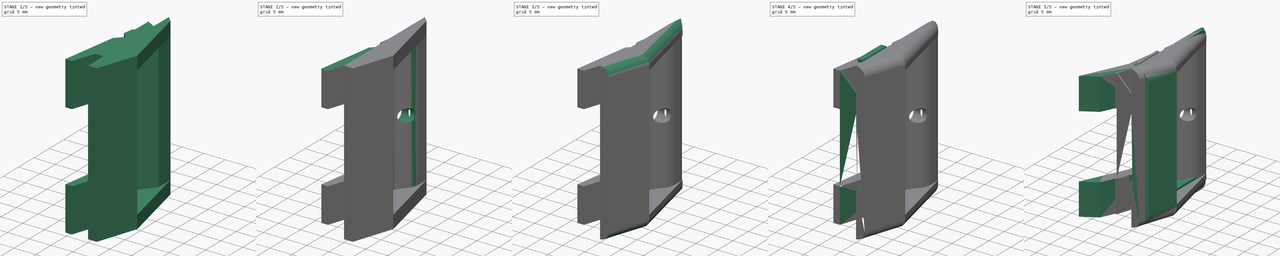
[diagram: build sequence overview — one tinted view per stage of 5, left to right]
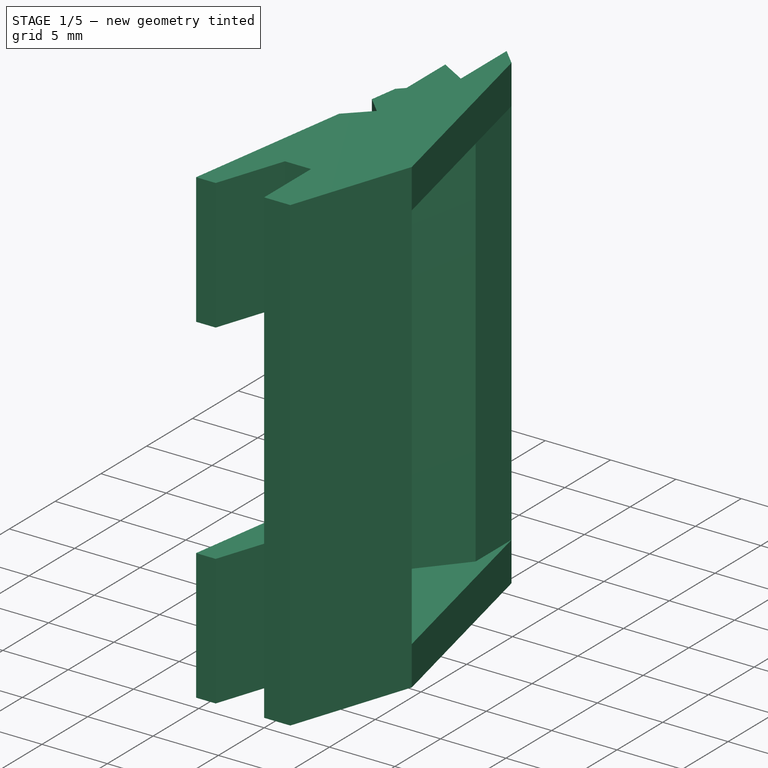
[diagram: stage 1 of 5 — iso view after this stage's code; geometry added in this stage tinted green]
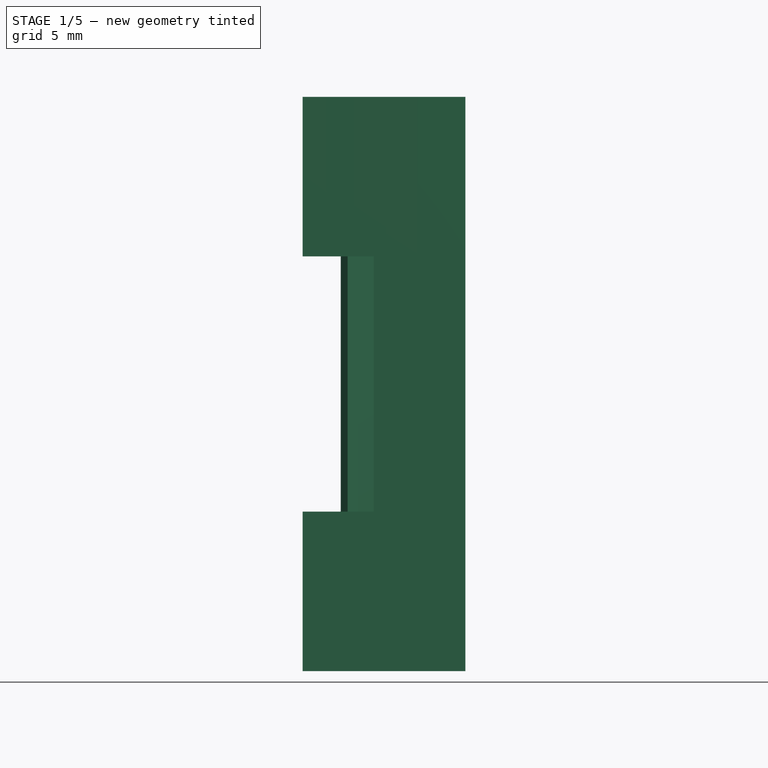
[diagram: stage 1 of 5 — front view after this stage's code; geometry added in this stage tinted green]
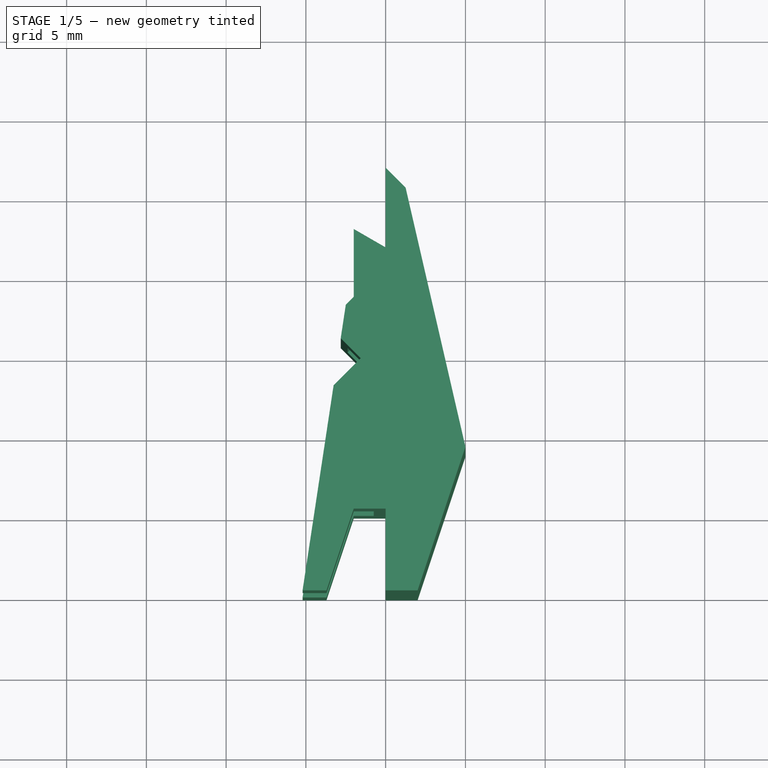
[diagram: stage 1 of 5 — top view after this stage's code; geometry added in this stage tinted green]
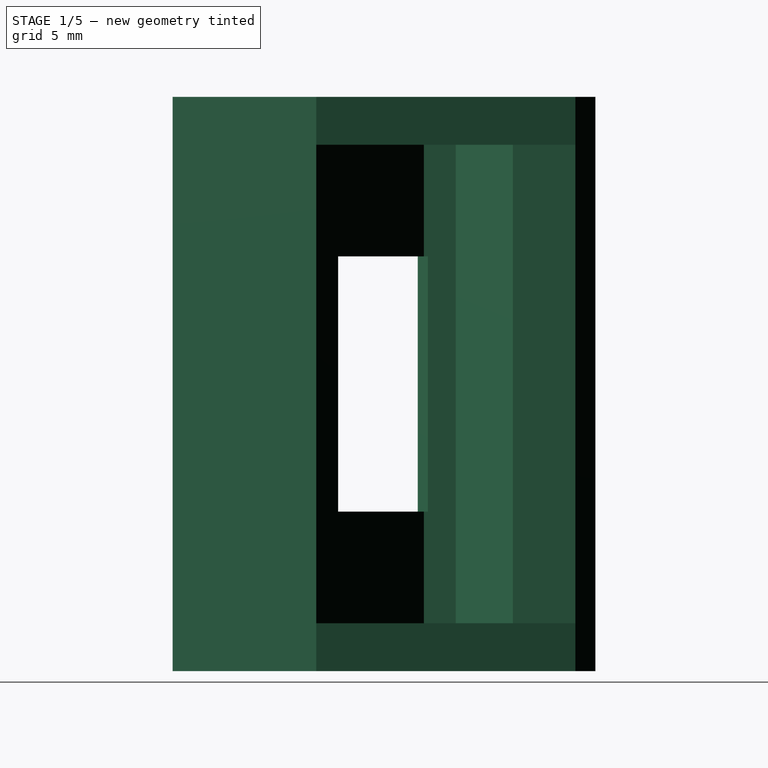
[diagram: stage 1 of 5 — right view after this stage's code; geometry added in this stage tinted green]
FCSTD DOCUMENT  (FreeCAD 0.18R4 (GitTag))
Label: USB_bezel_v1.1
License: All rights reserved
LicenseURL: http://en.wikipedia.org/wiki/All_rights_reserved
objects: Sketcher::SketchObject×11, PartDesign::Pocket×7, PartDesign::Pad×4, PartDesign::Fillet×4, PartDesign::Chamfer×3, PartDesign::Plane×2, Part::FeaturePython×1, PartDesign::Body×1
note: 44 computed .brp shape members not serialized (recipe doc carries the construction recipe); baked Part::Feature solids carry a one-line shape summary decoded from their .brp

FEATURE [Sketcher::SketchObject] Sketch
  MapMode = 5
  Support = -> [XY_Plane]
  sketch-geometry (13):
    g0: LineSegment StartX=0 StartY=26.5 StartZ=0 EndX=1.25 EndY=25.25 EndZ=0
    g1: LineSegment StartX=5 StartY=9 StartZ=0 EndX=2 EndY=0 EndZ=0
    g2: LineSegment StartX=2 StartY=0 StartZ=0 EndX=0 EndY=0 EndZ=0
    g3: LineSegment StartX=0 StartY=0 StartZ=0 EndX=0 EndY=5.125 EndZ=0
    g4: LineSegment StartX=0 StartY=5.125 StartZ=0 EndX=-2 EndY=5.125 EndZ=0
    g5: LineSegment StartX=-2 StartY=5.125 StartZ=0 EndX=-3.70833 EndY=0 EndZ=0
    g6: LineSegment StartX=-3.70833 StartY=0 StartZ=0 EndX=-5.20833 EndY=0 EndZ=0
    g7: LineSegment StartX=-5.20833 StartY=0 StartZ=0 EndX=-2.5 EndY=17.9047 EndZ=0
    g8: LineSegment StartX=-2.5 StartY=17.9047 StartZ=0 EndX=-2 EndY=18.4047 EndZ=0
    g9: LineSegment StartX=-2 StartY=18.4047 StartZ=0 EndX=-2 EndY=22.6547 EndZ=0
    g10: LineSegment StartX=-2 StartY=22.6547 StartZ=0 EndX=0 EndY=21.5 EndZ=0
    g11: LineSegment StartX=0 StartY=21.5 StartZ=0 EndX=0 EndY=26.5 EndZ=0
    g12: LineSegment StartX=1.25 StartY=25.25 StartZ=0 EndX=5 EndY=9 EndZ=0
  constraints (38):
    c: PointOnObject(g0,g-2)
    c: PointOnObject(g1,g-1)
    c: Coincident(g1,g2)
    c: Coincident(g2,g-1)
    c: Coincident(g2,g3)
    c: Vertical(g3)
    c: Coincident(g3,g4)
    c: Horizontal(g4)
    c: PointOnObject(g5,g-1)
    c: Coincident(g5,g6)
    c: PointOnObject(g6,g-1)
    c: Coincident(g6,g7)
    c: Coincident(g7,g8)
    c: Coincident(g8,g9)
    c: Vertical(g9)
    c: Coincident(g9,g10)
    c: PointOnObject(g10,g-2)
    c: Coincident(g10,g11)
    c: Coincident(g11,g0)
    c: DistanceY(g0) = 26.5
    c: Angle(g0) = -0.785398
    c: DistanceX(g0,g0) = 1.25
    c: DistanceX(g2,g2) = 2
    c: DistanceX(g1,g1) = 3
    c: DistanceY(g1,g1) = 9
    c: DistanceY(g3,g3) = 5.125
    c: DistanceX(g4,g4) = 2
    c: Coincident(g4,g5)
    c: Parallel(g5,g1)
    c: Angle(g10) = -0.523599
    c: DistanceY(g11,g11) = 5
    c: DistanceX(g10,g10) = 2
    c: DistanceY(g9,g9) = 4.25
    c: Angle(g8) = 0.785398
    c: DistanceY(g8,g8) = 0.5
    c: DistanceX(g6,g6) = 1.5
    c: Coincident(g0,g12)
    c: Coincident(g12,g1)
FEATURE [PartDesign::Pad] Pad
  Length = 36
  Length2 = 100
  Profile = -> Sketch
  Refine = true
  Type = 0
FEATURE [PartDesign::Plane] DatumPlane
  AttachmentOffset = pos=(0,0,-10) rot=(0,0,1;0rad)
  Length = 25.4037
  MapMode = 5
  Placement = pos=(0,0,10) rot=(1,0,0;3.14159rad)
  ResizeMode = 0
  Support = -> [Pad]
  Width = 41.9037
FEATURE [Sketcher::SketchObject] Sketch003
  ExternalGeometry = -> [Pad]
  MapMode = 5
  Placement = pos=(0,0,10) rot=(1,0,0;3.14159rad)
  Support = -> [DatumPlane]
  sketch-geometry (6):
    g0: LineSegment StartX=4.48438 StartY=-11.2344 StartZ=0 EndX=-0.75 EndY=-6 EndZ=0
    g1: LineSegment StartX=-0.75 StartY=-6 StartZ=0 EndX=-0.75 EndY=0 EndZ=0
    g2: LineSegment StartX=-0.75 StartY=0 StartZ=0 EndX=-7.25 EndY=0 EndZ=0
    g3: LineSegment StartX=-7.25 StartY=0 StartZ=0 EndX=-7.25 EndY=-10.5 EndZ=0
    g4: LineSegment StartX=-7.25 StartY=-10.5 StartZ=0 EndX=2.42188 EndY=-20.1719 EndZ=0
    g5: LineSegment StartX=4.48438 StartY=-11.2344 StartZ=0 EndX=2.42188 EndY=-20.1719 EndZ=0
  constraints (18):
    c: Coincident(g0,g1)
    c: PointOnObject(g1,g-1)
    c: Vertical(g1)
    c: Coincident(g1,g2)
    c: PointOnObject(g2,g-1)
    c: Coincident(g2,g3)
    c: Vertical(g3)
    c: Coincident(g3,g4)
    c: DistanceX(g1) = -0.75
    c: Angle(g0) = 2.35619
    c: Parallel(g4,g0)
    c: DistanceY(g1,g1) = 6
    c: Coincident(g5,g0)
    c: Coincident(g5,g4)
    c: DistanceX(g2,g2) = 6.5
    c: DistanceY(g3,g3) = 10.5
    c: PointOnObject(g0,g-3)
    c: PointOnObject(g4,g-3)
FEATURE [PartDesign::Pocket] Pocket
  BaseFeature = -> Pad
  Length = 16
  Length2 = 100
  Profile = -> Sketch003
  Refine = true
  Type = 0
FEATURE [PartDesign::Plane] DatumPlane001
  AttachmentOffset = pos=(0,0,-3) rot=(0,0,1;0rad)
  Length = 25.4037
  MapMode = 5
  Placement = pos=(0,0,3) rot=(1,0,0;3.14159rad)
  ResizeMode = 0
  Support = -> [Pocket]
  Width = 41.9037
FEATURE [Sketcher::SketchObject] Sketch004
  ExternalGeometry = -> [Pocket]
  MapMode = 5
  Placement = pos=(0,0,3) rot=(1,0,0;3.14159rad)
  Support = -> [DatumPlane001]
  sketch-geometry (5):
    g0: LineSegment StartX=5 StartY=-9 StartZ=0 EndX=-1.75 EndY=-15.75 EndZ=0
    g1: LineSegment StartX=5 StartY=-9 StartZ=0 EndX=1.25 EndY=-25.25 EndZ=0
    g2: LineSegment StartX=1.25 StartY=-25.25 StartZ=0 EndX=1.25 EndY=-21.3253 EndZ=0
    g3: LineSegment StartX=1.25 StartY=-21.3253 StartZ=0 EndX=-1.75 EndY=-17.75 EndZ=0
    g4: LineSegment StartX=-1.75 StartY=-17.75 StartZ=0 EndX=-1.75 EndY=-15.75 EndZ=0
  constraints (13):
    c: Coincident(g0,g1)
    c: Coincident(g1,g2)
    c: Vertical(g2)
    c: Coincident(g2,g3)
    c: Coincident(g3,g4)
    c: Coincident(g4,g0)
    c: Vertical(g4)
    c: Angle(g0) = -2.35619
    c: Coincident(g0,g-3)
    c: DistanceX(g0,g0) = 6.75
    c: DistanceY(g4,g4) = 2
    c: Coincident(g1,g-4)
    c: Angle(g3) = 2.26893
FEATURE [PartDesign::Pocket] Pocket001
  BaseFeature = -> Pocket
  Length = 30
  Length2 = 100
  Profile = -> Sketch004
  Refine = true
  Type = 0
FEATURE [Sketcher::SketchObject] Sketch005
  ExternalGeometry = -> [Pocket001]
  MapMode = 5
  Placement = pos=(0,0,26) rot=(1,0,0;3.14159rad)
  Support = -> [Pocket001]
  sketch-geometry (3):
    g0: LineSegment StartX=-2.81782 StartY=-15.8036 StartZ=0 EndX=-1.56782 EndY=-14.5536 EndZ=0
    g1: LineSegment StartX=-1.56782 StartY=-14.5536 StartZ=0 EndX=-3.26338 EndY=-12.858 EndZ=0
    g2: LineSegment StartX=-3.26338 StartY=-12.858 StartZ=0 EndX=-2.81782 EndY=-15.8036 EndZ=0
  constraints (9):
    c: Coincident(g0,g1)
    c: Coincident(g1,g2)
    c: Coincident(g2,g0)
    c: Angle(g0) = 0.785398
    c: PointOnObject(g0,g-3)
    c: DistanceX(g0,g0) = 1.25
    c: Perpendicular(g0,g1)
    c: PointOnObject(g1,g-3)
    c: Distance(g0,g-3) = 2.125
FEATURE [PartDesign::Pocket] Pocket002
  BaseFeature = -> Pocket001
  Length = 5
  Length2 = 100
  Midplane = true
  Profile = -> Sketch005
  Refine = true
  Type = 1
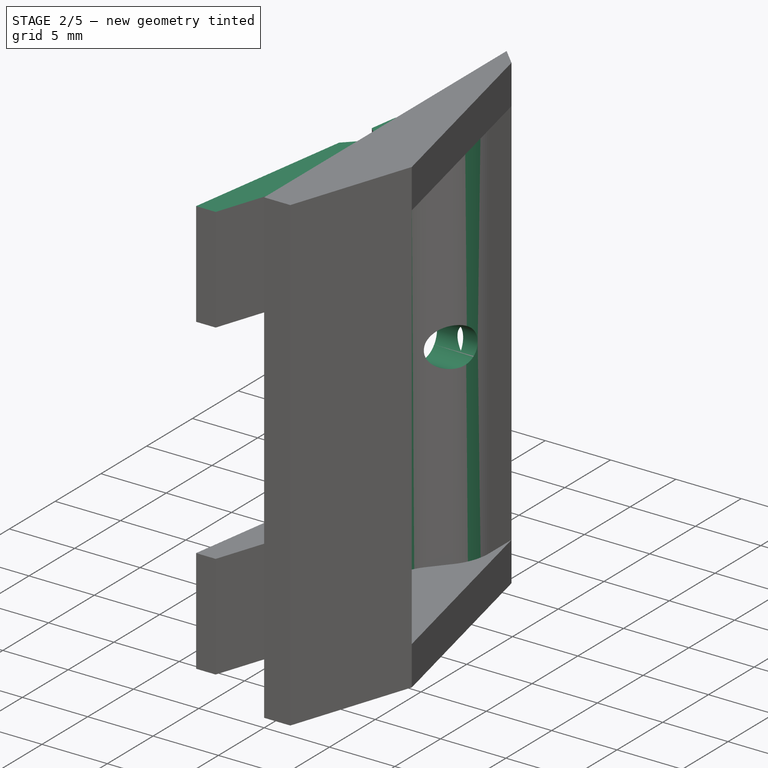
[diagram: stage 2 of 5 — iso view after this stage's code; geometry added in this stage tinted green]
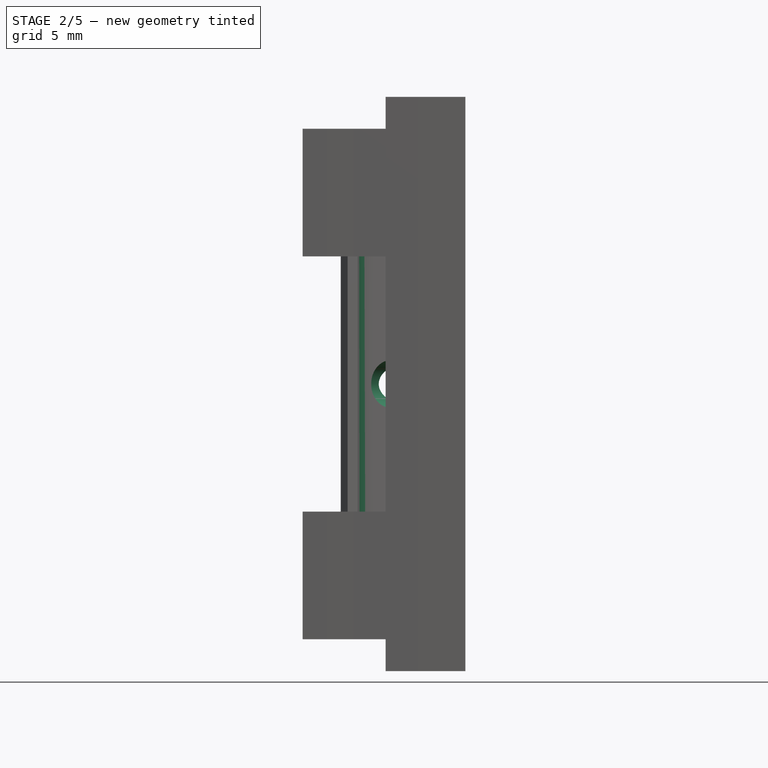
[diagram: stage 2 of 5 — front view after this stage's code; geometry added in this stage tinted green]
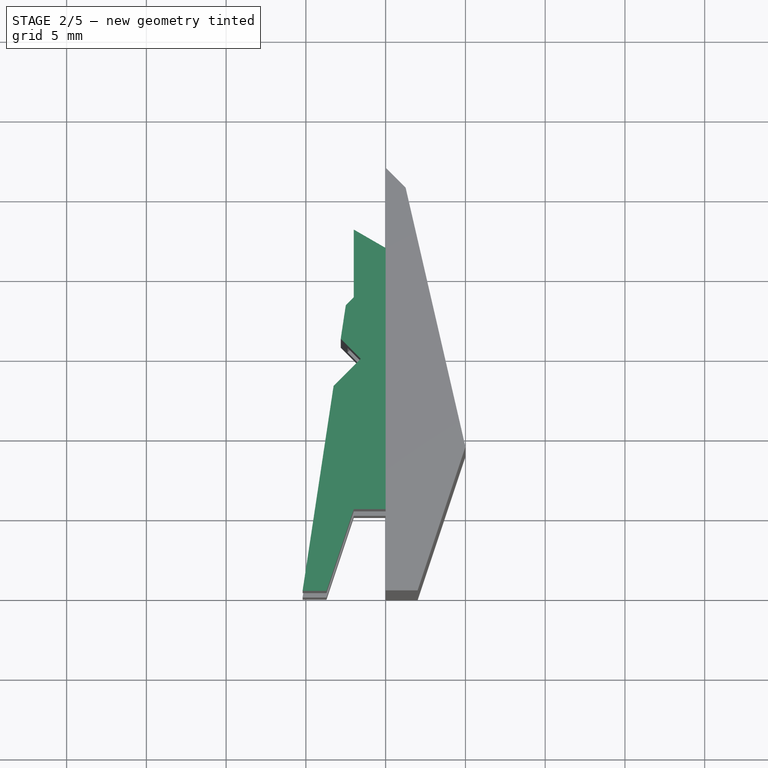
[diagram: stage 2 of 5 — top view after this stage's code; geometry added in this stage tinted green]
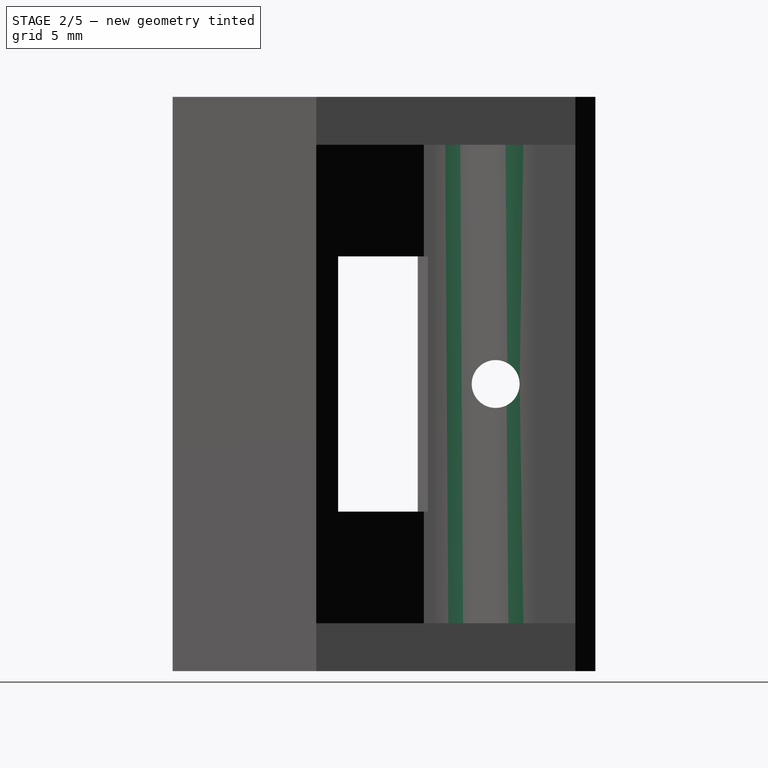
[diagram: stage 2 of 5 — right view after this stage's code; geometry added in this stage tinted green]
FEATURE [Sketcher::SketchObject] Sketch006
  ExternalGeometry = -> [Pocket002]
  MapMode = 5
  Placement = pos=(0,5.125,0) rot=(1,0,0;1.5708rad)
  Support = -> [Pocket002]
  sketch-geometry (4):
    g0: LineSegment StartX=-0.75 StartY=26 StartZ=0 EndX=0 EndY=26 EndZ=0
    g1: LineSegment StartX=0 StartY=26 StartZ=0 EndX=0 EndY=10 EndZ=0
    g2: LineSegment StartX=0 StartY=10 StartZ=0 EndX=-0.75 EndY=10 EndZ=0
    g3: LineSegment StartX=-0.75 StartY=10 StartZ=0 EndX=-0.75 EndY=26 EndZ=0
  constraints (10):
    c: Coincident(g0,g1)
    c: Coincident(g1,g2)
    c: Coincident(g2,g3)
    c: Coincident(g3,g0)
    c: Horizontal(g0)
    c: Horizontal(g2)
    c: Vertical(g1)
    c: Coincident(g0,g-3)
    c: PointOnObject(g1,g-2)
    c: Coincident(g2,g-3)
FEATURE [PartDesign::Pocket] Pocket003
  BaseFeature = -> Pocket002
  Length = 5
  Length2 = 100
  Profile = -> Sketch006
  Refine = true
  Type = 0
FEATURE [Sketcher::SketchObject] Sketch007
  MapMode = 5
  Placement = pos=(0,0,0) rot=(1,0,0;1.5708rad)
  Support = -> [Pocket003]
  sketch-geometry (8):
    g0: LineSegment StartX=0 StartY=0 StartZ=0 EndX=-6 EndY=0 EndZ=0
    g1: LineSegment StartX=-6 StartY=0 StartZ=0 EndX=-6 EndY=2 EndZ=0
    g2: LineSegment StartX=-6 StartY=2 StartZ=0 EndX=0 EndY=2 EndZ=0
    g3: LineSegment StartX=0 StartY=2 StartZ=0 EndX=0 EndY=0 EndZ=0
    g4: LineSegment StartX=0 StartY=36 StartZ=0 EndX=-6 EndY=36 EndZ=0
    g5: LineSegment StartX=-6 StartY=36 StartZ=0 EndX=-6 EndY=34 EndZ=0
    g6: LineSegment StartX=-6 StartY=34 StartZ=0 EndX=0 EndY=34 EndZ=0
    g7: LineSegment StartX=0 StartY=34 StartZ=0 EndX=0 EndY=36 EndZ=0
  constraints (23):
    c: Coincident(g0,g1)
    c: Coincident(g1,g2)
    c: Coincident(g2,g3)
    c: Coincident(g3,g0)
    c: Horizontal(g0)
    c: Horizontal(g2)
    c: Vertical(g1)
    c: Vertical(g3)
    c: Coincident(g0,g-1)
    c: Coincident(g4,g5)
    c: Coincident(g5,g6)
    c: Coincident(g6,g7)
    c: Coincident(g7,g4)
    c: Horizontal(g4)
    c: Horizontal(g6)
    c: Vertical(g5)
    c: Vertical(g7)
    c: PointOnObject(g4,g-2)
    c: DistanceY(g4) = 36
    c: Equal(g0,g4)
    c: Equal(g7,g3)
    c: DistanceX(g4,g4) = 6
    c: DistanceY(g7,g7) = 2
FEATURE [PartDesign::Pocket] Pocket004
  BaseFeature = -> Pocket003
  Length = 5
  Length2 = 100
  Profile = -> Sketch007
  Refine = true
  Type = 1
FEATURE [PartDesign::Fillet] Fillet
  Base = -> Pocket004 [Edge27,Edge10]
  BaseFeature = -> Pocket004
  Radius = 4
FEATURE [Sketcher::SketchObject] Sketch008
  MapMode = 5
  Placement = pos=(1.25,0,0) rot=(0.57735,0.57735,0.57735;2.0944rad)
  Support = -> [Fillet]
  sketch-geometry (1):
    g0: Circle CenterX=20.25 CenterY=18 CenterZ=0 NormalX=0 NormalY=0 NormalZ=1 AngleXU=0 Radius=1.5
  constraints (3):
    c: DistanceY(g-1,g0) = 18
    c: DistanceX(g0) = 20.25
    c: Radius(g0) = 1.5
FEATURE [PartDesign::Pocket] Pocket005
  BaseFeature = -> Fillet
  Length = 5
  Length2 = 100
  Profile = -> Sketch008
  Refine = true
  Type = 0
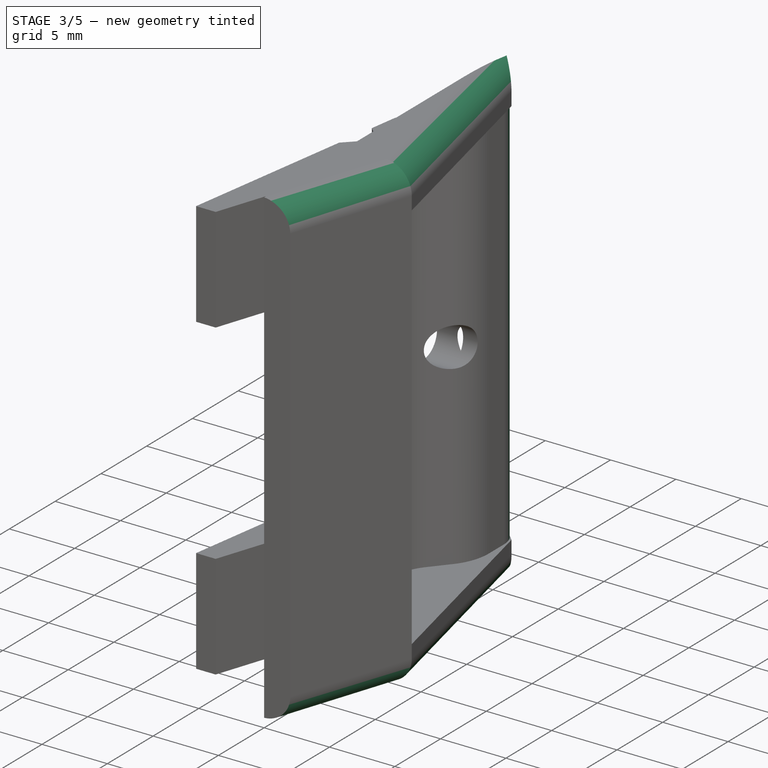
[diagram: stage 3 of 5 — iso view after this stage's code; geometry added in this stage tinted green]
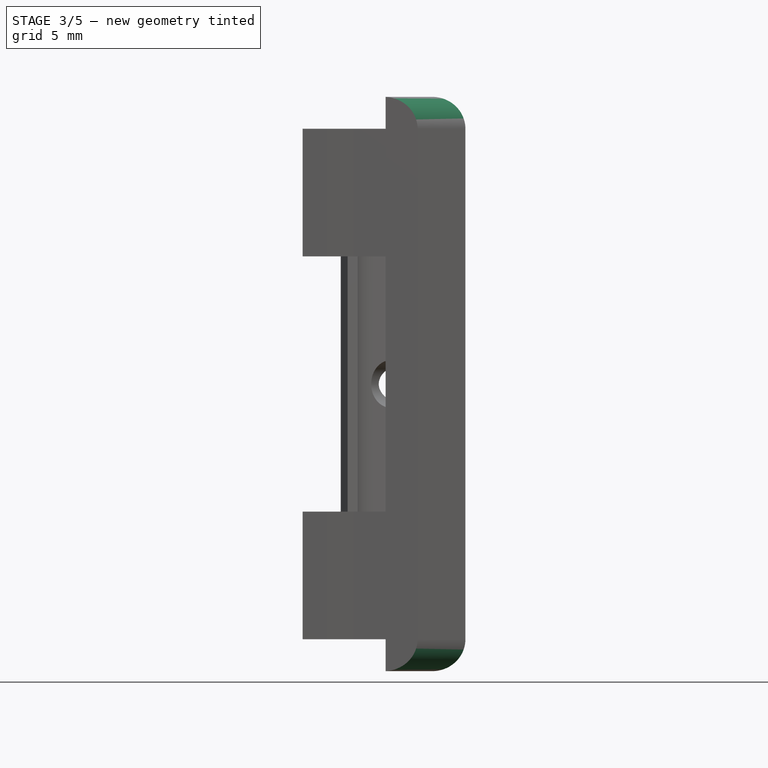
[diagram: stage 3 of 5 — front view after this stage's code; geometry added in this stage tinted green]
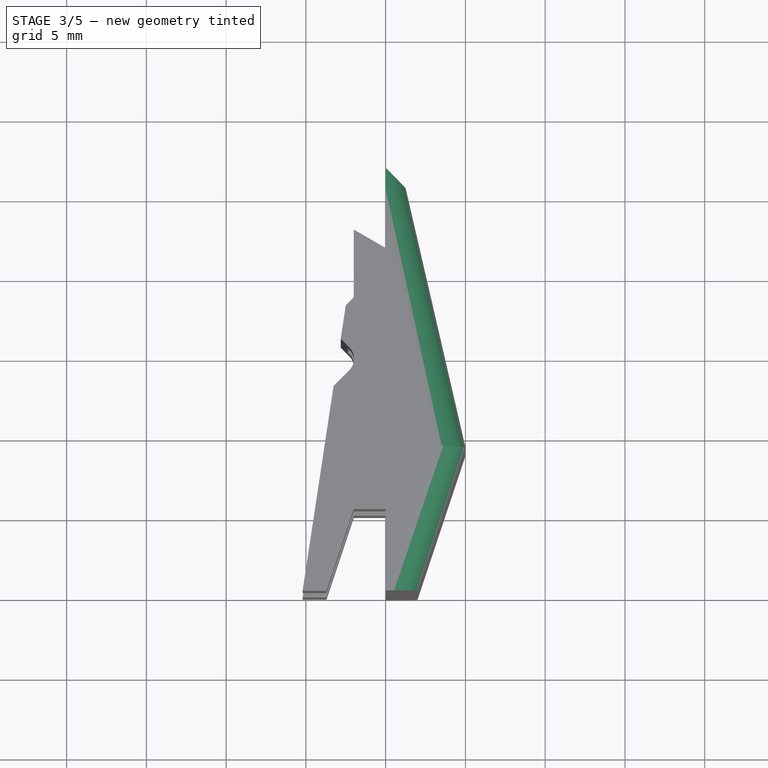
[diagram: stage 3 of 5 — top view after this stage's code; geometry added in this stage tinted green]
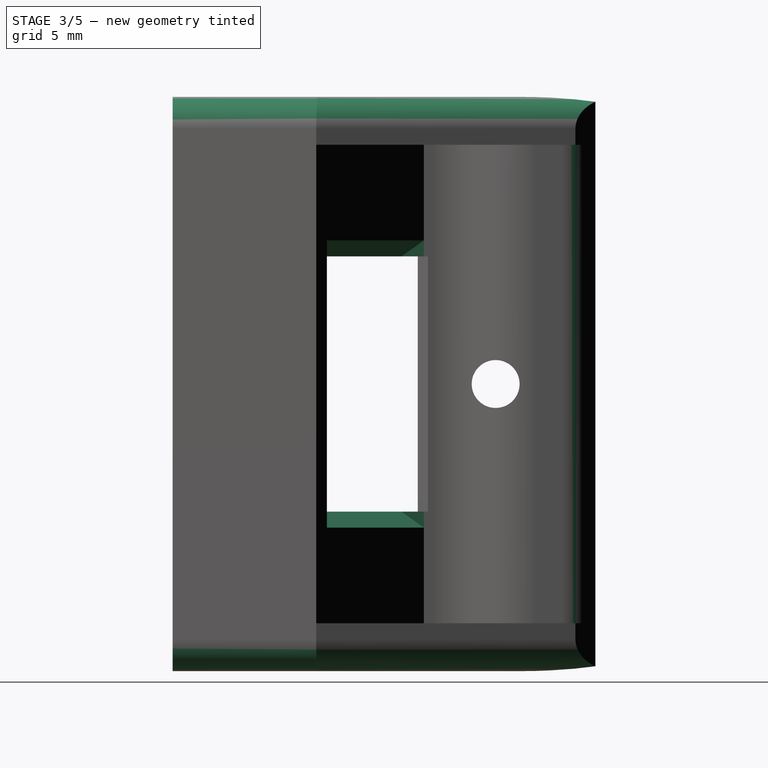
[diagram: stage 3 of 5 — right view after this stage's code; geometry added in this stage tinted green]
FEATURE [PartDesign::Fillet] Fillet001
  Base = -> Pocket005 [Edge65,Edge67,Edge63,Edge40,Edge3]
  BaseFeature = -> Pocket005
  Radius = 2
FEATURE [PartDesign::Fillet] Fillet002
  Base = -> Fillet001 [Edge125,Edge126]
  BaseFeature = -> Fillet001
  Radius = 1
FEATURE [PartDesign::Chamfer] Chamfer
  Base = -> Fillet002 [Edge7,Edge36,Edge35]
  BaseFeature = -> Fillet002
  Size = 1
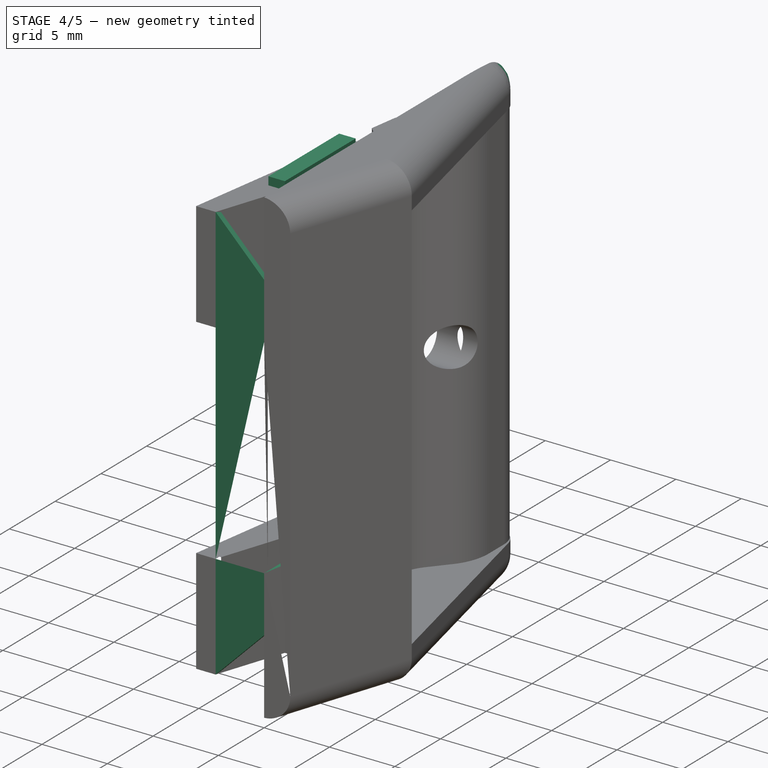
[diagram: stage 4 of 5 — iso view after this stage's code; geometry added in this stage tinted green]
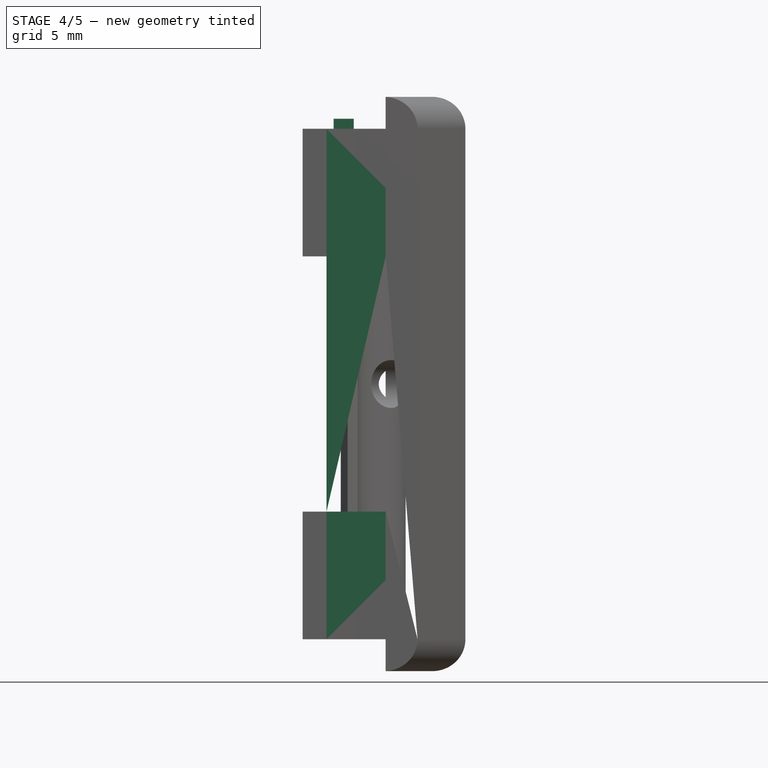
[diagram: stage 4 of 5 — front view after this stage's code; geometry added in this stage tinted green]
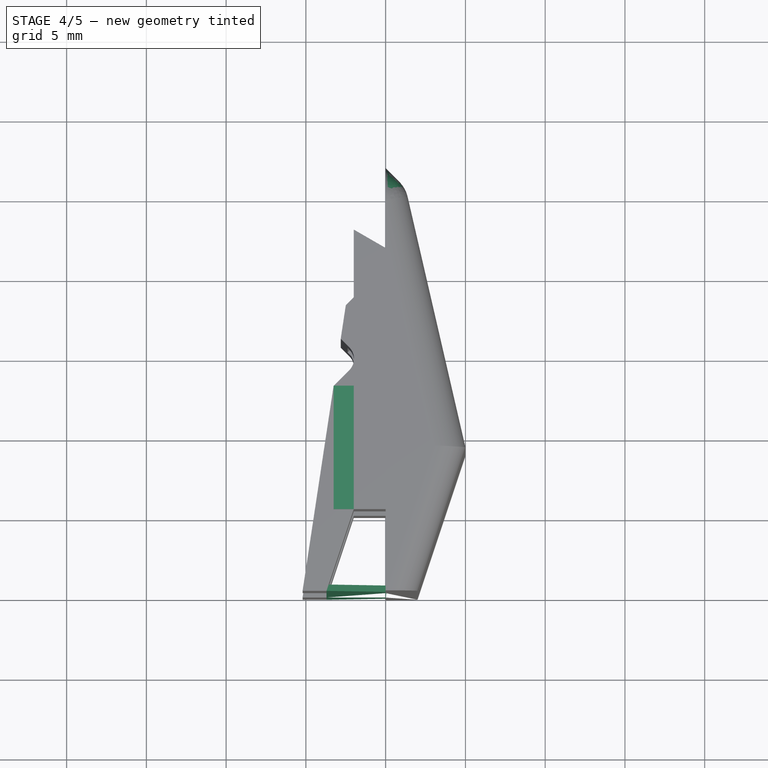
[diagram: stage 4 of 5 — top view after this stage's code; geometry added in this stage tinted green]
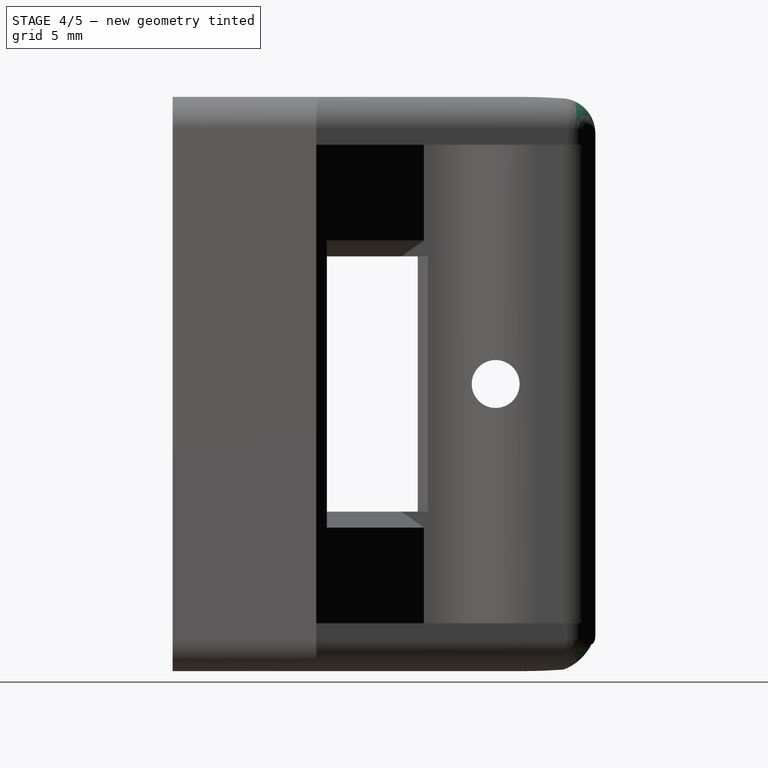
[diagram: stage 4 of 5 — right view after this stage's code; geometry added in this stage tinted green]
FEATURE [PartDesign::Fillet] Fillet003
  Base = -> Chamfer [Edge88,Edge89]
  BaseFeature = -> Chamfer
  Radius = 2
FEATURE [Sketcher::SketchObject] Sketch009
  ExternalGeometry = -> [Fillet003]
  MapMode = 5
  Placement = pos=(0,0,0) rot=(1,0,0;1.5708rad)
  Support = -> [Fillet003]
  sketch-geometry (4):
    g0: LineSegment StartX=-3.70833 StartY=34 StartZ=0 EndX=4e-16 EndY=30.2917 EndZ=0
    g1: LineSegment StartX=0 StartY=30.2917 StartZ=0 EndX=0 EndY=5.70833 EndZ=0
    g2: LineSegment StartX=0 StartY=5.70833 StartZ=0 EndX=-3.70833 EndY=2 EndZ=0
    g3: LineSegment StartX=-3.70833 StartY=2 StartZ=0 EndX=-3.70833 EndY=34 EndZ=0
  constraints (10):
    c: Coincident(g-3,g0)
    c: Coincident(g0,g1)
    c: Vertical(g1)
    c: Coincident(g1,g2)
    c: Coincident(g2,g-4)
    c: Coincident(g2,g3)
    c: Coincident(g3,g0)
    c: PointOnObject(g0,g-2)
    c: Angle(g2) = -2.35619
    c: Perpendicular(g2,g0)
FEATURE [PartDesign::Pad] Pad001
  BaseFeature = -> Fillet003
  Length = 0.4
  Length2 = 100
  Profile = -> Sketch009
  Refine = true
  Reversed = true
  Type = 0
FEATURE [Sketcher::SketchObject] Sketch010
  ExternalGeometry = -> [Pad001]
  MapMode = 5
  Placement = pos=(1.011e-13,-9.2e-14,10) rot=(0,0,1;0rad)
  Support = -> [Pad001]
  sketch-geometry (3):
    g0: LineSegment StartX=1.5 StartY=8.25 StartZ=0 EndX=-2e-16 EndY=0 EndZ=0
    g1: LineSegment StartX=-2e-16 StartY=0 StartZ=0 EndX=-1.8e-15 EndY=6.75 EndZ=0
    g2: LineSegment StartX=-1.8e-15 StartY=6.75 StartZ=0 EndX=1.5 EndY=8.25 EndZ=0
  constraints (7):
    c: PointOnObject(g0,g-4)
    c: Coincident(g0,g-1)
    c: Coincident(g0,g1)
    c: Coincident(g1,g-4)
    c: Coincident(g1,g2)
    c: Coincident(g2,g0)
    c: DistanceX(g2,g2) = 1.5
FEATURE [PartDesign::Pocket] Pocket006
  BaseFeature = -> Pad001
  Length = 16
  Length2 = 100
  Profile = -> Sketch010
  Refine = true
  Reversed = true
  Type = 0
FEATURE [Sketcher::SketchObject] Sketch011
  ExternalGeometry = -> [Pocket006]
  MapMode = 5
  Placement = pos=(0,7.5e-15,34) rot=(0,0,1;0rad)
  Support = -> [Pocket006]
  sketch-geometry (4):
    g0: LineSegment StartX=-2 StartY=5.125 StartZ=0 EndX=-2 EndY=12.858 EndZ=0
    g1: LineSegment StartX=-2 StartY=12.858 StartZ=0 EndX=-3.26338 EndY=12.858 EndZ=0
    g2: LineSegment StartX=-3.26338 StartY=12.858 StartZ=0 EndX=-3.26338 EndY=5.125 EndZ=0
    g3: LineSegment StartX=-3.26338 StartY=5.125 StartZ=0 EndX=-2 EndY=5.125 EndZ=0
  constraints (10):
    c: Coincident(g-3,g0)
    c: Vertical(g0)
    c: Coincident(g0,g1)
    c: Coincident(g1,g-4)
    c: Horizontal(g1)
    c: Coincident(g1,g2)
    c: Vertical(g2)
    c: Coincident(g2,g3)
    c: Coincident(g3,g0)
    c: Horizontal(g3)
FEATURE [PartDesign::Pad] Pad002
  BaseFeature = -> Pocket006
  Length = 0.625
  Length2 = 100
  Profile = -> Sketch011
  Refine = true
  Type = 0
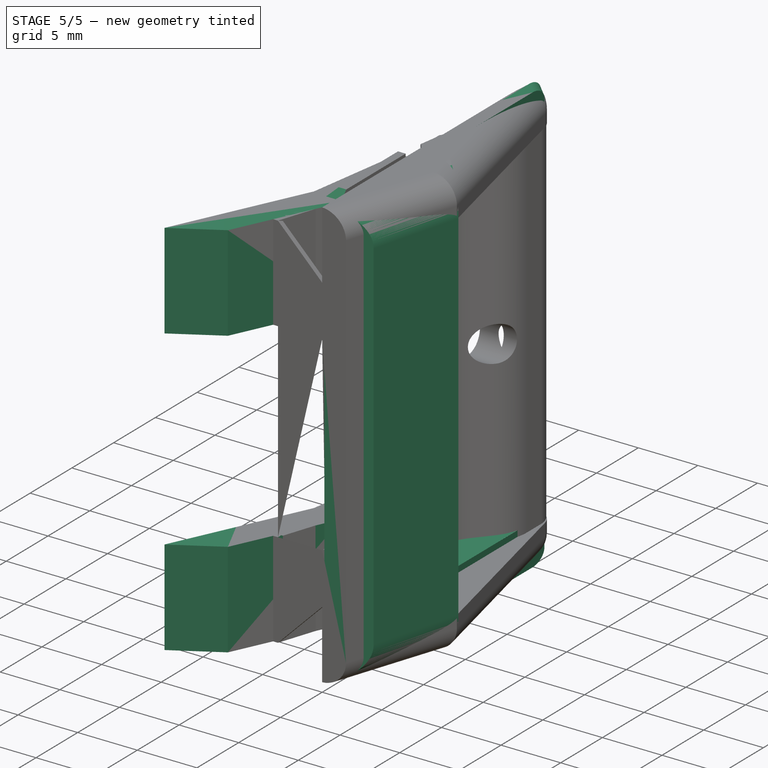
[diagram: stage 5 of 5 — iso view after this stage's code; geometry added in this stage tinted green]
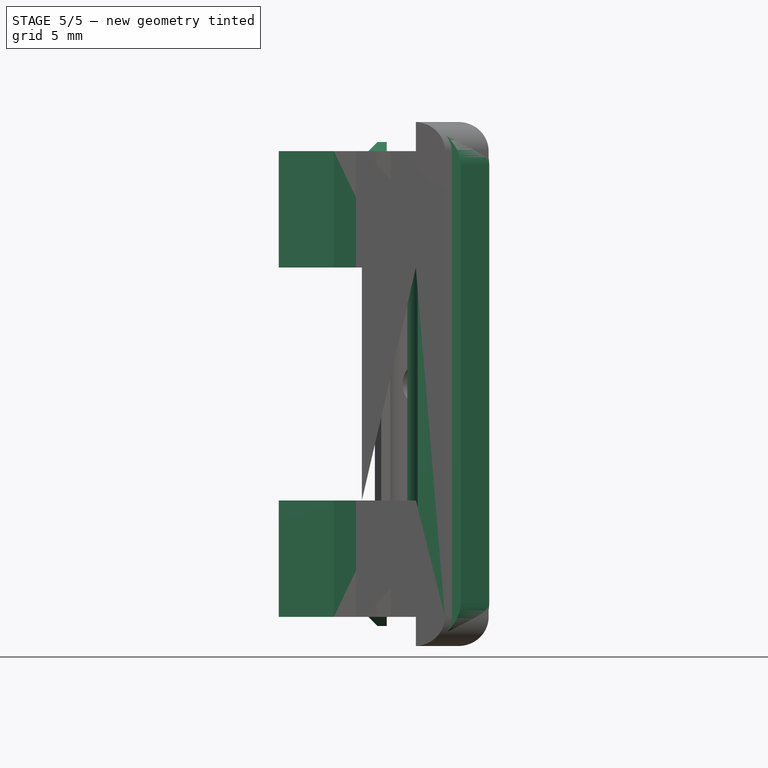
[diagram: stage 5 of 5 — front view after this stage's code; geometry added in this stage tinted green]
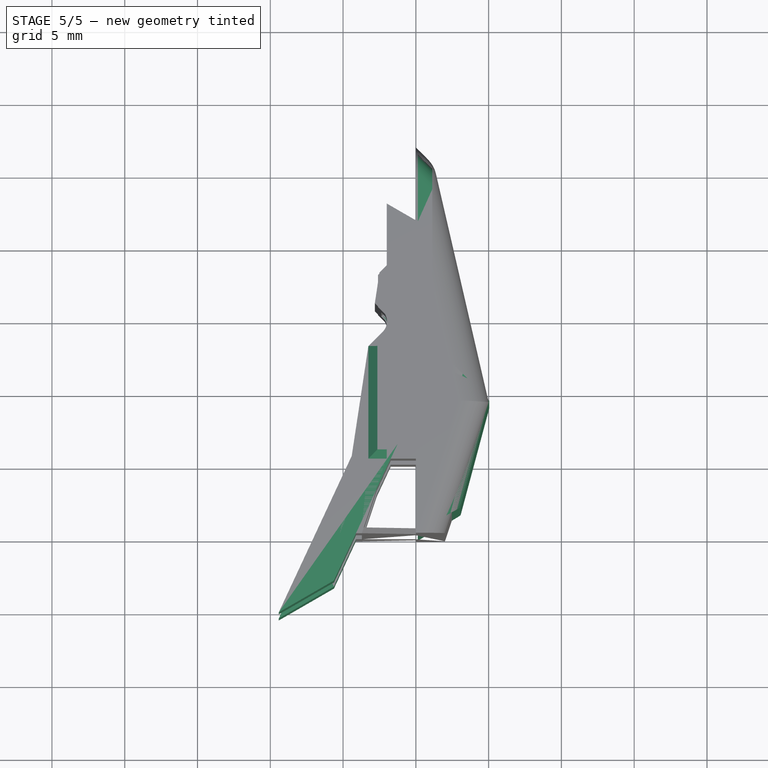
[diagram: stage 5 of 5 — top view after this stage's code; geometry added in this stage tinted green]
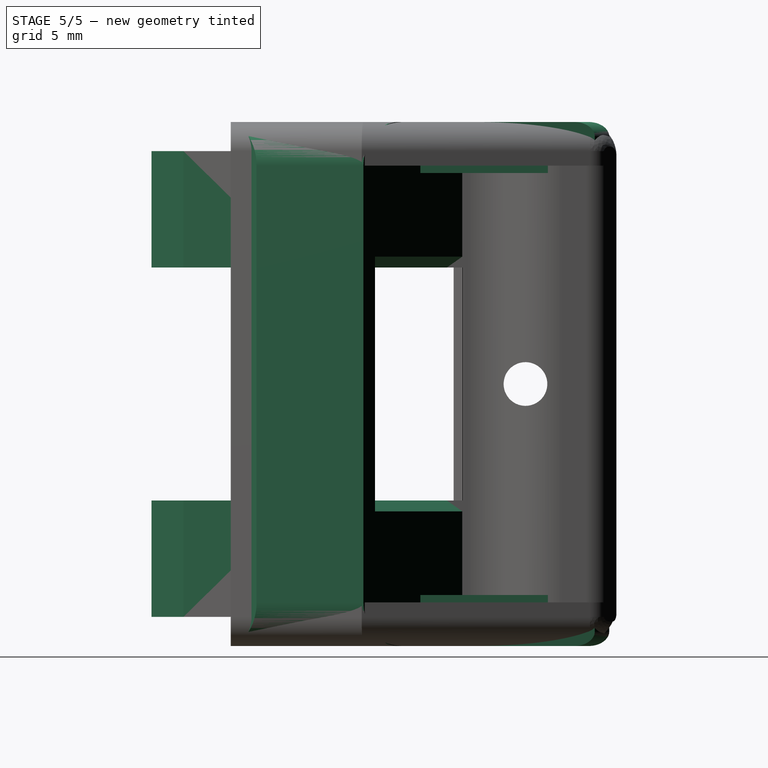
[diagram: stage 5 of 5 — right view after this stage's code; geometry added in this stage tinted green]
FEATURE [Part::FeaturePython] b_USB_bezel_v1_001_  label="USB_bezel_v1_001"  # a2plus imported part (geometry in sourceFile) (typed FeaturePython)
  Placement = pos=(-0.866025,-0.5,0) rot=(0,0,1;0.523599rad)
  a2p_Version = V0.1
  fixedPosition = true
  sourceFile = .\USB_bezel_v1.fcstd
  subassemblyImport = false
  timeLastImport = 1.57913e+09
  updateColors = true
FEATURE [PartDesign::Chamfer] Chamfer001
  Base = -> Pad002 [Edge198,Edge197]
  BaseFeature = -> Pad002
  Size = 0.624
FEATURE [Sketcher::SketchObject] Sketch012
  ExternalGeometry = -> [Chamfer001]
  MapMode = 5
  Placement = pos=(0,4e-16,2) rot=(1,0,0;3.14159rad)
  Support = -> [Chamfer001]
  sketch-geometry (4):
    g0: LineSegment StartX=-2 StartY=-5.125 StartZ=0 EndX=-2 EndY=-12.858 EndZ=0
    g1: LineSegment StartX=-2 StartY=-12.858 StartZ=0 EndX=-3.26338 EndY=-12.858 EndZ=0
    g2: LineSegment StartX=-3.26338 StartY=-12.858 StartZ=0 EndX=-3.26338 EndY=-5.125 EndZ=0
    g3: LineSegment StartX=-3.26338 StartY=-5.125 StartZ=0 EndX=-2 EndY=-5.125 EndZ=0
  constraints (10):
    c: Coincident(g-3,g0)
    c: Vertical(g0)
    c: Coincident(g0,g1)
    c: Coincident(g1,g-4)
    c: Coincident(g1,g2)
    c: Vertical(g2)
    c: Coincident(g2,g3)
    c: Coincident(g3,g0)
    c: Horizontal(g3)
    c: Horizontal(g1)
FEATURE [PartDesign::Pad] Pad003
  BaseFeature = -> Chamfer001
  Length = 0.625
  Length2 = 100
  Profile = -> Sketch012
  Refine = true
  Type = 0
FEATURE [PartDesign::Chamfer] Chamfer002
  Base = -> Pad003 [Edge214,Edge215]
  BaseFeature = -> Pad003
  Size = 0.624
FEATURE [PartDesign::Body] Body
  Group = -> [Sketch,Pad,DatumPlane,Sketch003,Pocket,DatumPlane001,Sketch004,Pocket001,Sketch005,Pocket002,Sketch006,Pocket003,Sketch007,Pocket004,Fillet,Sketch008,Pocket005,Fillet001,Fillet002,Chamfer,Fillet003,Sketch009,Pad001,Sketch010,Pocket006,Sketch011,Pad002,Chamfer001,Sketch012,Pad003,Chamfer002]
  Origin = -> Origin
  Tip = -> Chamfer002
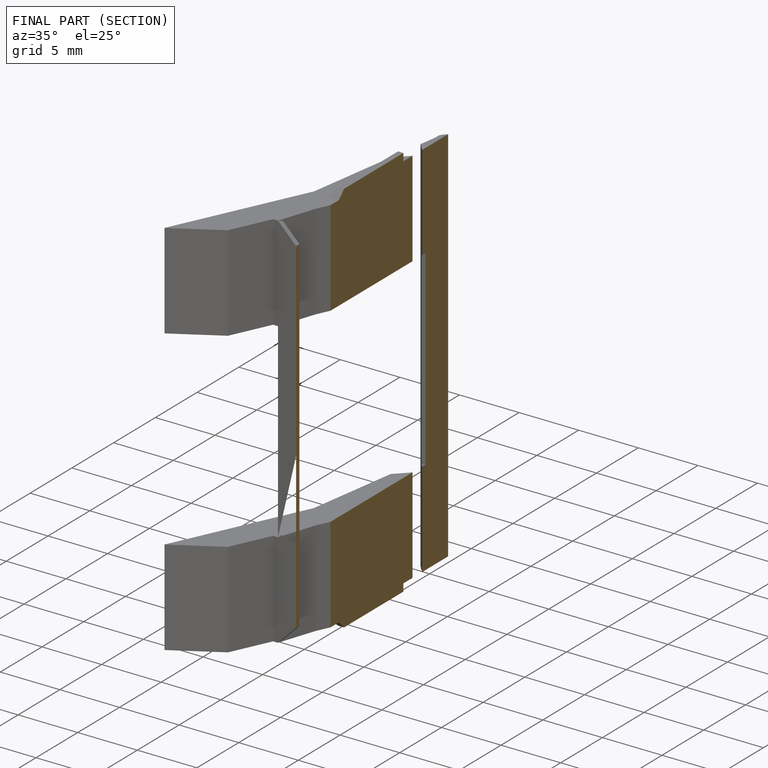
[diagram: finished part — half-section view (interior)]
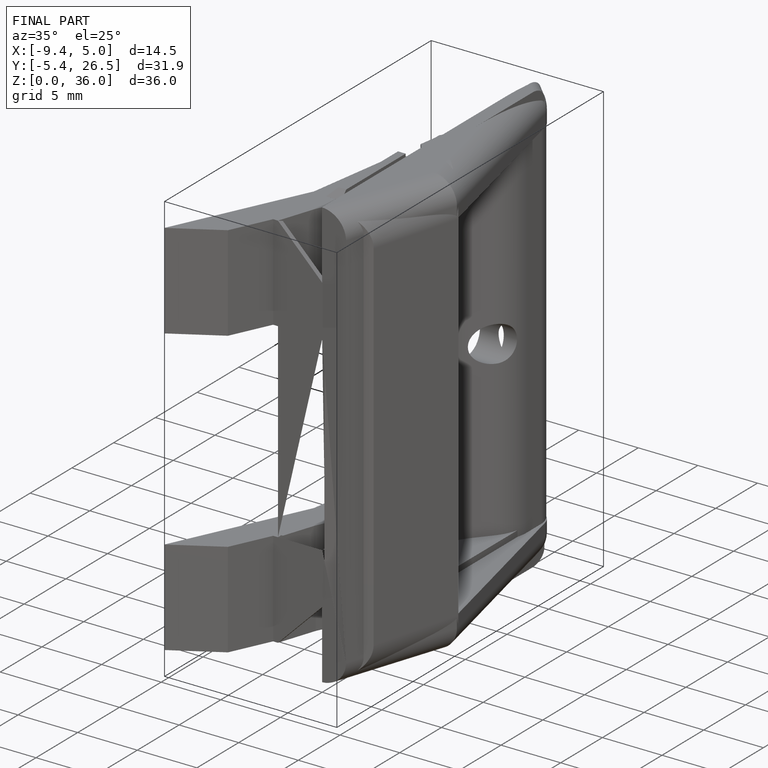
[diagram: finished part — iso view with bounding-box wireframe]
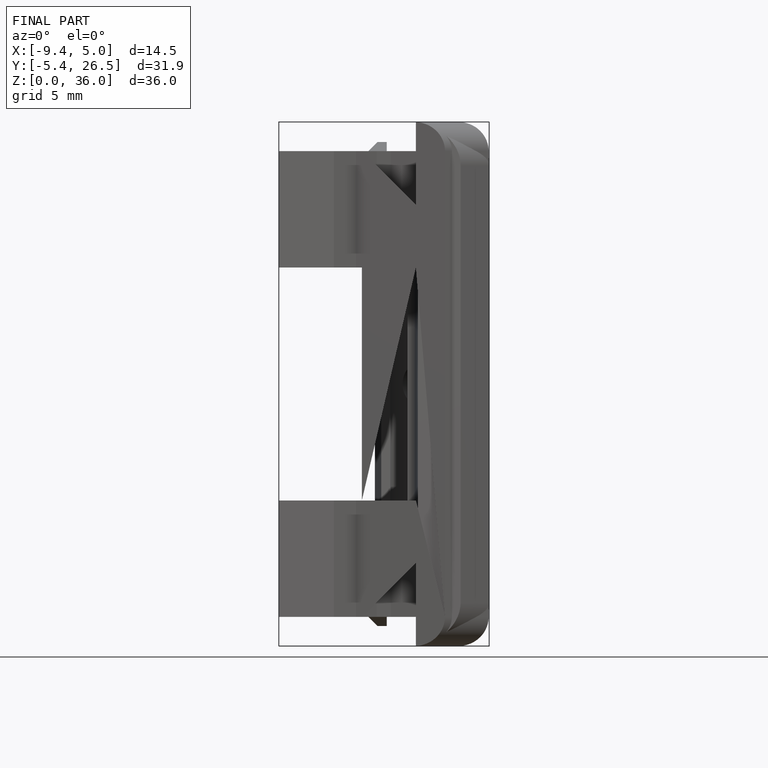
[diagram: finished part — front view with bounding-box wireframe]
